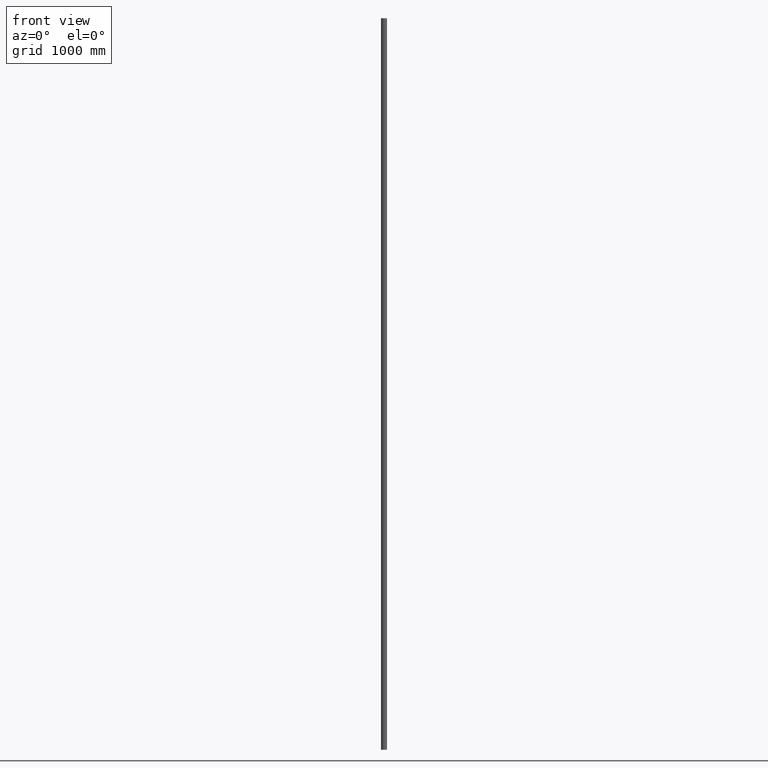
[diagram: clean part render]
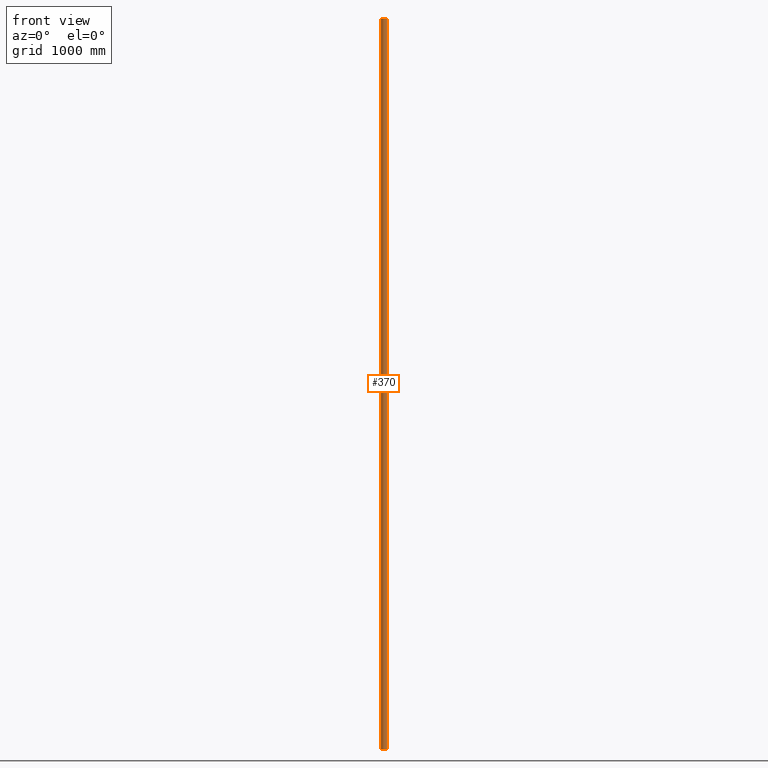
[diagram: same view with one face highlighted and labeled with its STEP entity id]
A machine part, front view. The second image highlights one B-rep face of the part: STEP entity #370.
In plain terms, the highlighted cylindrical surface (bore or boss wall) has radius 24.15 mm, axis along (-0, -0, -1).
Its self-contained STEP definition (entity closure, byte-faithful):
#193 = CARTESIAN_POINT ( 'NONE',  ( 0.000000000000000000, 0.000000000000000000, 3000.000000000000000 ) ) ;
#370 = ADVANCED_FACE ( 'NONE', ( #1256, #8983 ), #2515, .T. ) ;
#712 = ORIENTED_EDGE ( 'NONE', *, *, #9717, .T. ) ;
#838 = AXIS2_PLACEMENT_3D ( 'NONE', #3750, #9755, #11682 ) ;
#886 = VERTEX_POINT ( 'NONE', #2124 ) ;
#1256 = FACE_OUTER_BOUND ( 'NONE', #9637, .T. ) ;
#1516 = EDGE_CURVE ( 'NONE', #886, #886, #12822, .T. ) ;
#2124 = CARTESIAN_POINT ( 'NONE',  ( 24.14999999999999858, 0.000000000000000000, 3000.000000000000000 ) ) ;
#2515 = CYLINDRICAL_SURFACE ( 'NONE', #11385, 24.14999999999999858 ) ;
#2859 = CIRCLE ( 'NONE', #8781, 24.14999999999999858 ) ;
#3203 = CARTESIAN_POINT ( 'NONE',  ( 0.000000000000000000, 0.000000000000000000, -3000.000000000000000 ) ) ;
#3750 = CARTESIAN_POINT ( 'NONE',  ( 0.000000000000000000, 0.000000000000000000, 3000.000000000000000 ) ) ;
#4079 = DIRECTION ( 'NONE',  ( -0.000000000000000000, -0.000000000000000000, -1.000000000000000000 ) ) ;
#4336 = ORIENTED_EDGE ( 'NONE', *, *, #1516, .F. ) ;
#5073 = DIRECTION ( 'NONE',  ( -1.000000000000000000, 0.000000000000000000, 0.000000000000000000 ) ) ;
#5449 = CARTESIAN_POINT ( 'NONE',  ( 24.14999999999999858, 0.000000000000000000, -3000.000000000000000 ) ) ;
#6789 = EDGE_LOOP ( 'NONE', ( #712 ) ) ;
#8488 = VERTEX_POINT ( 'NONE', #5449 ) ;
#8781 = AXIS2_PLACEMENT_3D ( 'NONE', #3203, #10107, #10152 ) ;
#8983 = FACE_OUTER_BOUND ( 'NONE', #6789, .T. ) ;
#9637 = EDGE_LOOP ( 'NONE', ( #4336 ) ) ;
#9717 = EDGE_CURVE ( 'NONE', #8488, #8488, #2859, .T. ) ;
#9755 = DIRECTION ( 'NONE',  ( 0.000000000000000000, 0.000000000000000000, 1.000000000000000000 ) ) ;
#10107 = DIRECTION ( 'NONE',  ( 0.000000000000000000, 0.000000000000000000, 1.000000000000000000 ) ) ;
#10152 = DIRECTION ( 'NONE',  ( 1.000000000000000000, 0.000000000000000000, 0.000000000000000000 ) ) ;
#11385 = AXIS2_PLACEMENT_3D ( 'NONE', #193, #4079, #5073 ) ;
#11682 = DIRECTION ( 'NONE',  ( 1.000000000000000000, 0.000000000000000000, 0.000000000000000000 ) ) ;
#12822 = CIRCLE ( 'NONE', #838, 24.14999999999999858 ) ;